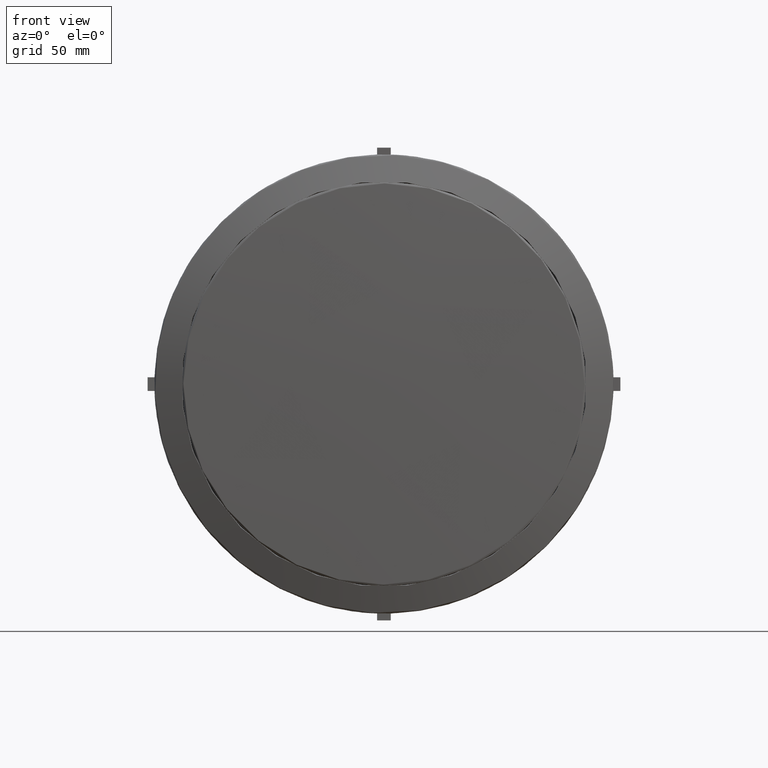
[diagram: clean part render]
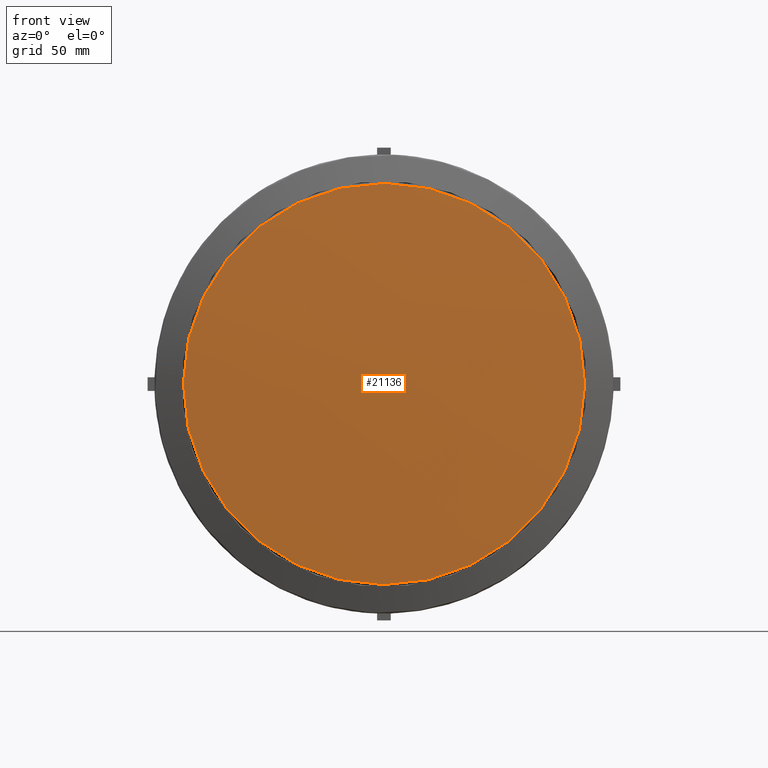
[diagram: same view with one face highlighted and labeled with its STEP entity id]
A machine part, front view. The second image highlights one B-rep face of the part: STEP entity #21136.
In plain terms, the highlighted face is a freeform B-spline surface patch.
Its self-contained STEP definition (entity closure, byte-faithful):
#737 = EDGE_LOOP ( 'NONE', ( #4445, #6564 ) ) ;
#1113 = CARTESIAN_POINT ( 'NONE',  ( 59.51752331987232481, -25.69683122670245723, -20.55849474149824729 ) ) ;
#2321 = VERTEX_POINT ( 'NONE', #12327 ) ;
#2361 = EDGE_CURVE ( 'NONE', #2321, #6891, #5023, .T. ) ;
#2661 = DIRECTION ( 'NONE',  ( -5.637309195838380305E-16, -1.000000000000000000, 2.775557561562891351E-17 ) ) ;
#4302 = CARTESIAN_POINT ( 'NONE',  ( -139.0541657291288402, -20.33624961125919128, -16.86016054635443950 ) ) ;
#4445 = ORIENTED_EDGE ( 'NONE', *, *, #2361, .T. ) ;
#4532 = CARTESIAN_POINT ( 'NONE',  ( 17.80957951713615017, -20.31534765286446387, -139.0142620089930858 ) ) ;
#4639 = CARTESIAN_POINT ( 'NONE',  ( -17.34374493696229891, -20.26504146546500706, 139.8635760626546869 ) ) ;
#5023 = CIRCLE ( 'NONE', #16974, 131.0596666524330374 ) ;
#6564 = ORIENTED_EDGE ( 'NONE', *, *, #6593, .T. ) ;
#6566 = DIRECTION ( 'NONE',  ( -5.637309195838380305E-16, -1.000000000000000000, 2.775557561562891351E-17 ) ) ;
#6593 = EDGE_CURVE ( 'NONE', #6891, #2321, #9136, .T. ) ;
#6891 = VERTEX_POINT ( 'NONE', #18600 ) ;
#7433 = CARTESIAN_POINT ( 'NONE',  ( 177.5708013985450862, -14.91578071269980477, -62.59182440234574329 ) ) ;
#9024 = CARTESIAN_POINT ( 'NONE',  ( -20.63361393584740355, -25.71277649524336439, -58.89912092032105306 ) ) ;
#9136 = CIRCLE ( 'NONE', #14953, 131.0596666524330374 ) ;
#9356 = CARTESIAN_POINT ( 'NONE',  ( 139.5206617843298886, -20.29992522682605127, 17.71133560678507379 ) ) ;
#10750 = CARTESIAN_POINT ( 'NONE',  ( -61.99895167148616082, -14.96344072324706787, -177.1910011664343472 ) ) ;
#10824 = CARTESIAN_POINT ( 'NONE',  ( -1.045714193884517292E-14, -19.08656804388226647, -1.083961897896717143E-14 ) ) ;
#10852 = CARTESIAN_POINT ( 'NONE',  ( -100.6384947090606801, -20.34770249329988445, -97.16978470916401989 ) ) ;
#12327 = CARTESIAN_POINT ( 'NONE',  ( -118.2291191019378260, -19.08656804388220252, -56.55538541488923698 ) ) ;
#12358 = CARTESIAN_POINT ( 'NONE',  ( 97.76400824266939082, -20.29944151752173553, -100.7677321646739586 ) ) ;
#12551 = DIRECTION ( 'NONE',  ( -0.9021014788285590669, 5.294454107157926567E-16, -0.4315239528639478461 ) ) ;
#14887 = DIRECTION ( 'NONE',  ( -0.9021014788285590669, 5.294454107157926567E-16, -0.4315239528639478461 ) ) ;
#14953 = AXIS2_PLACEMENT_3D ( 'NONE', #15097, #6566, #14887 ) ;
#15097 = CARTESIAN_POINT ( 'NONE',  ( -1.045714193884517292E-14, -19.08656804388226647, -1.083961897896717143E-14 ) ) ;
#15551 = FACE_OUTER_BOUND ( 'NONE', #737, .T. ) ;
#16534 =( BOUNDED_SURFACE ( )  B_SPLINE_SURFACE ( 3, 3, ( 
 ( #20479, #18982, #4639, #20810 ),
 ( #4302, #19090, #19192, #18878 ),
 ( #10852, #9024, #1113, #9356 ),
 ( #10750, #4532, #12358, #7433 ) ),
 .UNSPECIFIED., .F., .F., .F. ) 
 B_SPLINE_SURFACE_WITH_KNOTS ( ( 4, 4 ),
 ( 4, 4 ),
 ( 0.0000000000000000000, 1.000000000000000000 ),
 ( 0.0000000000000000000, 1.000000000000000000 ),
 .UNSPECIFIED. ) 
 GEOMETRIC_REPRESENTATION_ITEM ( )  RATIONAL_B_SPLINE_SURFACE ( (
 ( 1.000000000000000000, 0.9987762482902354799, 0.9987762482902354799, 1.000000000000000000),
 ( 0.9987699028606575880, 0.9975476564843704930, 0.9975476564843704930, 0.9987699028606575880),
 ( 0.9987699028606575880, 0.9975476564843704930, 0.9975476564843704930, 0.9987699028606575880),
 ( 1.000000000000000000, 0.9987762482902354799, 0.9987762482902354799, 1.000000000000000000) ) ) 
 REPRESENTATION_ITEM ( '' )  SURFACE ( )  );
#16974 = AXIS2_PLACEMENT_3D ( 'NONE', #10824, #2661, #12551 ) ;
#18600 = CARTESIAN_POINT ( 'NONE',  ( 118.2291191019377834, -19.08656804388233397, 56.55538541488920856 ) ) ;
#18878 = CARTESIAN_POINT ( 'NONE',  ( 101.1037370421786221, -20.28847259420084725, 98.02036004647949596 ) ) ;
#18982 = CARTESIAN_POINT ( 'NONE',  ( -97.29691994837756397, -20.28094735139383076, 101.6176459376405887 ) ) ;
#19090 = CARTESIAN_POINT ( 'NONE',  ( -59.04970261180366720, -25.70129560547708891, 21.41030345507660471 ) ) ;
#19192 = CARTESIAN_POINT ( 'NONE',  ( 21.10101622451361081, -25.68535042017653325, 59.75072948125722405 ) ) ;
#20479 = CARTESIAN_POINT ( 'NONE',  ( -177.1041997106076167, -14.92912434159654467, 63.44150540516130121 ) ) ;
#20810 = CARTESIAN_POINT ( 'NONE',  ( 62.46179681977417886, -14.88146507837533683, 178.0388852130574264 ) ) ;
#21136 = ADVANCED_FACE ( 'NONE', ( #15551 ), #16534, .T. ) ;